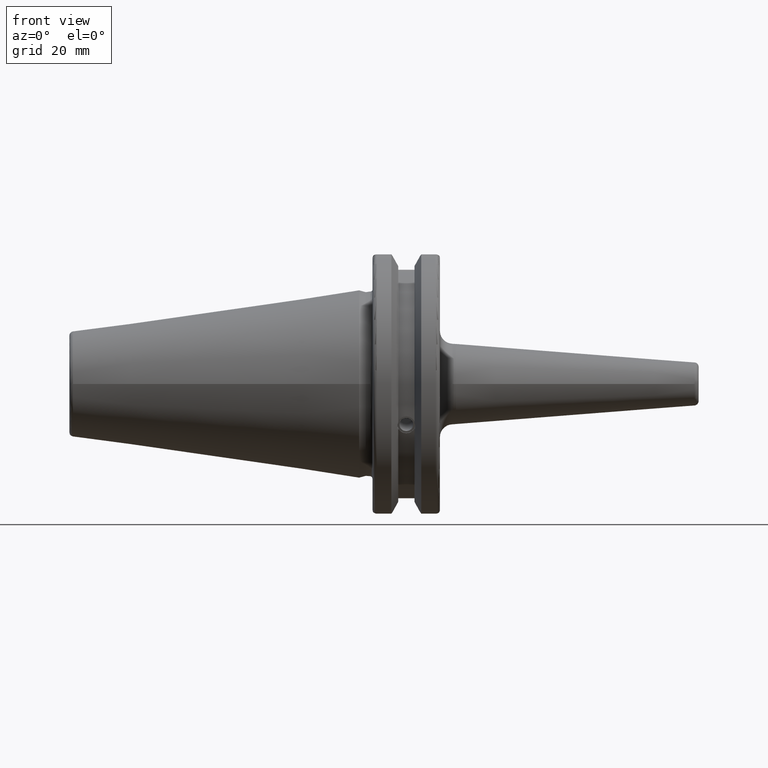
[diagram: clean part render]
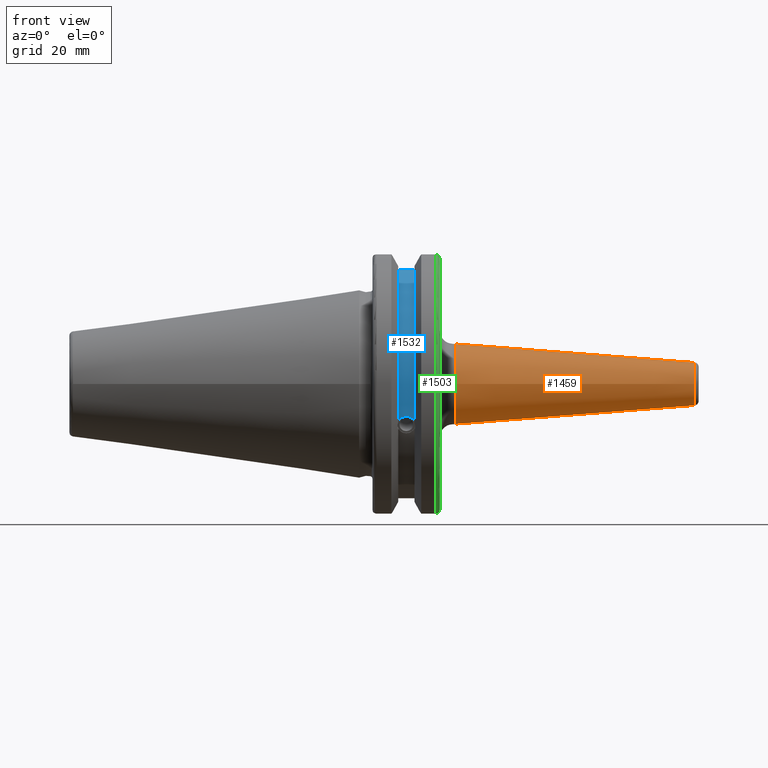
[diagram: same view with three faces highlighted in distinct colors, each labeled with its STEP entity id]
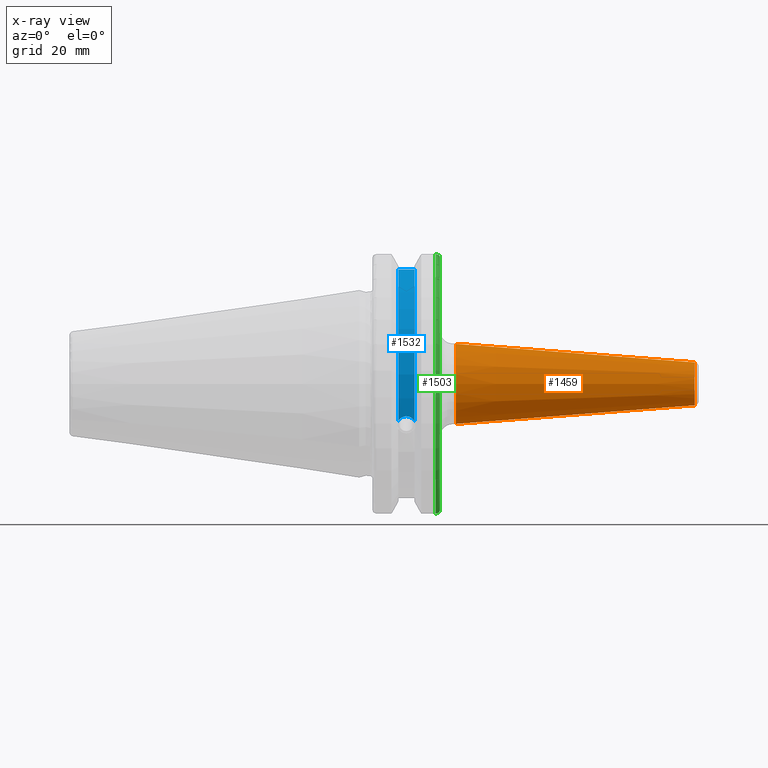
[diagram: x-ray of the same camera — body ghosted, the three highlighted faces saturated]
A machine part, front view with three faces highlighted in distinct colors.
The next image is the same camera in x-ray (body ghosted, the three faces saturated) — at least one of them is partly hidden behind the body in this view.
Their STEP definitions:

[orange] entity #1459 — the highlighted conical surface has half-angle 4.5 deg.
#156=LINE('',#2195,#250);
#250=VECTOR('',#1754,7.25);
#344=CONICAL_SURFACE('',#1571,7.25,0.0785398163397448);
#359=FACE_OUTER_BOUND('',#444,.T.);
#444=EDGE_LOOP('',(#997,#998,#999,#1000,#1001));
#544=CIRCLE('',#1569,5.07252684207492);
#545=CIRCLE('',#1570,5.07252684207492);
#546=CIRCLE('',#1572,9.5);
#614=VERTEX_POINT('',#2188);
#615=VERTEX_POINT('',#2190);
#616=VERTEX_POINT('',#2194);
#765=EDGE_CURVE('',#614,#615,#544,.T.);
#766=EDGE_CURVE('',#615,#614,#545,.T.);
#767=EDGE_CURVE('',#615,#616,#156,.T.);
#768=EDGE_CURVE('',#616,#616,#546,.T.);
#997=ORIENTED_EDGE('',*,*,#766,.F.);
#998=ORIENTED_EDGE('',*,*,#767,.T.);
#999=ORIENTED_EDGE('',*,*,#768,.T.);
#1000=ORIENTED_EDGE('',*,*,#767,.F.);
#1001=ORIENTED_EDGE('',*,*,#765,.F.);
#1459=ADVANCED_FACE('',(#359),#344,.T.);
#1569=AXIS2_PLACEMENT_3D('',#2191,#1748,#1749);
#1570=AXIS2_PLACEMENT_3D('',#2192,#1750,#1751);
#1571=AXIS2_PLACEMENT_3D('',#2193,#1752,#1753);
#1572=AXIS2_PLACEMENT_3D('',#2196,#1755,#1756);
#1748=DIRECTION('center_axis',(1.,0.,0.));
#1749=DIRECTION('ref_axis',(0.,-1.,3.06161699786838E-17));
#1750=DIRECTION('center_axis',(1.,0.,0.));
#1751=DIRECTION('ref_axis',(0.,-1.,3.06161699786838E-17));
#1752=DIRECTION('center_axis',(-1.,0.,0.));
#1753=DIRECTION('ref_axis',(0.,1.,0.));
#1754=DIRECTION('',(-0.996917333733128,-0.078459095727845,-9.60846804471011E-18));
#1755=DIRECTION('center_axis',(1.,0.,0.));
#1756=DIRECTION('ref_axis',(0.,0.,-1.));
#2188=CARTESIAN_POINT('',(79.0784590957279,-6.21205376073608E-16,5.07252684207492));
#2190=CARTESIAN_POINT('',(79.0784590957279,-5.07252684207492,-6.21205376073608E-16));
#2191=CARTESIAN_POINT('Origin',(79.0784590957279,0.,-7.7650672009201E-16));
#2192=CARTESIAN_POINT('Origin',(79.0784590957279,0.,-7.7650672009201E-16));
#2193=CARTESIAN_POINT('Origin',(51.4110393436069,0.,0.));
#2194=CARTESIAN_POINT('',(22.8220786872138,-9.5,-1.16341445918999E-15));
#2195=CARTESIAN_POINT('',(51.4110393436069,-7.25,-8.87868929381831E-16));
#2196=CARTESIAN_POINT('Origin',(22.8220786872138,0.,0.));

[blue] entity #1532 — the highlighted cylindrical surface (partial cylindrical patch) has radius 28.15 mm, axis along (1, 0, 0).
#54=B_SPLINE_CURVE_WITH_KNOTS('',3,(#2370,#2371,#2372,#2373,#2374,#2375,
#2376,#2377,#2378,#2379,#2380,#2381,#2382,#2383),.UNSPECIFIED.,.F.,.F.,
(4,2,2,2,2,2,4),(0.401639126382403,0.474814416953736,0.553950208498303,
0.63308600004287,0.712221791587437,0.791357583132004,0.864532873703336),
 .UNSPECIFIED.);
#105=CYLINDRICAL_SURFACE('',#1723,28.15);
#221=LINE('',#2783,#315);
#315=VECTOR('',#2039,10.);
#432=FACE_OUTER_BOUND('',#529,.T.);
#529=EDGE_LOOP('',(#1398,#1399,#1400,#1401));
#607=CIRCLE('',#1724,28.15);
#608=CIRCLE('',#1725,28.15);
#653=VERTEX_POINT('',#2367);
#654=VERTEX_POINT('',#2369);
#737=VERTEX_POINT('',#2780);
#738=VERTEX_POINT('',#2782);
#817=EDGE_CURVE('',#654,#653,#54,.T.);
#932=EDGE_CURVE('',#738,#737,#221,.T.);
#983=EDGE_CURVE('',#738,#653,#607,.T.);
#984=EDGE_CURVE('',#737,#654,#608,.T.);
#1398=ORIENTED_EDGE('',*,*,#817,.T.);
#1399=ORIENTED_EDGE('',*,*,#983,.F.);
#1400=ORIENTED_EDGE('',*,*,#932,.T.);
#1401=ORIENTED_EDGE('',*,*,#984,.T.);
#1532=ADVANCED_FACE('',(#432),#105,.T.);
#1723=AXIS2_PLACEMENT_3D('',#2931,#2147,#2148);
#1724=AXIS2_PLACEMENT_3D('',#2932,#2149,#2150);
#1725=AXIS2_PLACEMENT_3D('',#2933,#2151,#2152);
#2039=DIRECTION('',(-1.,0.,0.));
#2147=DIRECTION('center_axis',(1.,0.,0.));
#2148=DIRECTION('ref_axis',(0.,-0.887654187951484,0.46051063246378));
#2149=DIRECTION('center_axis',(1.,0.,0.));
#2150=DIRECTION('ref_axis',(0.,0.,-1.));
#2151=DIRECTION('center_axis',(1.,0.,0.));
#2152=DIRECTION('ref_axis',(0.,0.,-1.));
#2367=CARTESIAN_POINT('',(13.0491,-26.734714844398,-8.81348524641211));
#2369=CARTESIAN_POINT('',(9.2191,-26.734714844398,-8.81348524641212));
#2370=CARTESIAN_POINT('Ctrl Pts',(9.2191,-26.734714844398,-8.81348524641212));
#2371=CARTESIAN_POINT('Ctrl Pts',(9.32533057097183,-26.8086519721597,-8.58920529678291));
#2372=CARTESIAN_POINT('Ctrl Pts',(9.47682013770509,-26.8729987454904,-8.38416529997369));
#2373=CARTESIAN_POINT('Ctrl Pts',(9.83557062657411,-26.9778908791383,-8.04056861831091));
#2374=CARTESIAN_POINT('Ctrl Pts',(10.0716450112988,-27.0233016799732,-7.88512567185902));
#2375=CARTESIAN_POINT('Ctrl Pts',(10.5890125426388,-27.0826966800569,-7.6786444840004));
#2376=CARTESIAN_POINT('Ctrl Pts',(10.8703140281848,-27.0968804077294,-7.62768458768512));
#2377=CARTESIAN_POINT('Ctrl Pts',(11.3978859718152,-27.0968804077294,-7.62768458768512));
#2378=CARTESIAN_POINT('Ctrl Pts',(11.6791874573612,-27.0826966800569,-7.6786444840004));
#2379=CARTESIAN_POINT('Ctrl Pts',(12.1965549887012,-27.0233016799732,-7.88512567185902));
#2380=CARTESIAN_POINT('Ctrl Pts',(12.4326293734259,-26.9778908791383,-8.04056861831091));
#2381=CARTESIAN_POINT('Ctrl Pts',(12.7913798622949,-26.8729987454904,-8.38416529997369));
#2382=CARTESIAN_POINT('Ctrl Pts',(12.9428694290282,-26.8086519721597,-8.5892052967829));
#2383=CARTESIAN_POINT('Ctrl Pts',(13.0491,-26.734714844398,-8.81348524641211));
#2780=CARTESIAN_POINT('',(9.2191,-8.19,26.932255754021));
#2782=CARTESIAN_POINT('',(13.0491,-8.19,26.932255754021));
#2783=CARTESIAN_POINT('',(11.1341,-8.19,26.932255754021));
#2931=CARTESIAN_POINT('Origin',(11.1341,0.,0.));
#2932=CARTESIAN_POINT('Origin',(13.0491,0.,0.));
#2933=CARTESIAN_POINT('Origin',(9.2191,0.,0.));

[green] entity #1503 — the highlighted toroidal blend (fillet) surface has major radius 30.75 mm and minor (blend) radius 1 mm.
#68=B_SPLINE_CURVE_WITH_KNOTS('',3,(#2733,#2734,#2735,#2736,#2737,#2738),
 .UNSPECIFIED.,.F.,.F.,(4,2,4),(0.097738363091569,0.112311108149119,0.150804350305566),
 .UNSPECIFIED.);
#69=B_SPLINE_CURVE_WITH_KNOTS('',3,(#2740,#2741,#2742,#2743,#2744,#2745),
 .UNSPECIFIED.,.F.,.F.,(4,2,4),(0.452741154494497,0.491581665024872,0.505824174364156),
 .UNSPECIFIED.);
#70=B_SPLINE_CURVE_WITH_KNOTS('',3,(#2747,#2748,#2749,#2750,#2751,#2752,
#2753,#2754),.UNSPECIFIED.,.F.,.F.,(4,2,2,4),(-0.104180282751877,-0.0729784742461446,
-0.0343524753874984,0.),.UNSPECIFIED.);
#71=B_SPLINE_CURVE_WITH_KNOTS('',3,(#2757,#2758,#2759,#2760,#2761,#2762,
#2763,#2764),.UNSPECIFIED.,.F.,.F.,(4,2,2,4),(0.,0.0343524753874978,0.0729784742461449,
0.104180282751877),.UNSPECIFIED.);
#403=FACE_OUTER_BOUND('',#499,.T.);
#499=EDGE_LOOP('',(#1253,#1254,#1255,#1256,#1257,#1258));
#553=CIRCLE('',#1583,30.75);
#592=CIRCLE('',#1680,31.75);
#627=VERTEX_POINT('',#2222);
#628=VERTEX_POINT('',#2224);
#730=VERTEX_POINT('',#2732);
#731=VERTEX_POINT('',#2739);
#732=VERTEX_POINT('',#2746);
#733=VERTEX_POINT('',#2755);
#781=EDGE_CURVE('',#628,#627,#553,.T.);
#922=EDGE_CURVE('',#730,#628,#68,.T.);
#923=EDGE_CURVE('',#627,#731,#69,.T.);
#924=EDGE_CURVE('',#731,#732,#70,.T.);
#925=EDGE_CURVE('',#732,#733,#592,.T.);
#926=EDGE_CURVE('',#733,#730,#71,.T.);
#1253=ORIENTED_EDGE('',*,*,#922,.T.);
#1254=ORIENTED_EDGE('',*,*,#781,.T.);
#1255=ORIENTED_EDGE('',*,*,#923,.T.);
#1256=ORIENTED_EDGE('',*,*,#924,.T.);
#1257=ORIENTED_EDGE('',*,*,#925,.T.);
#1258=ORIENTED_EDGE('',*,*,#926,.T.);
#1454=TOROIDAL_SURFACE('',#1679,30.75,1.);
#1503=ADVANCED_FACE('',(#403),#1454,.T.);
#1583=AXIS2_PLACEMENT_3D('',#2225,#1783,#1784);
#1679=AXIS2_PLACEMENT_3D('',#2731,#2030,#2031);
#1680=AXIS2_PLACEMENT_3D('',#2756,#2032,#2033);
#1783=DIRECTION('center_axis',(-1.,0.,0.));
#1784=DIRECTION('ref_axis',(0.,-1.,1.60812264967664E-16));
#2030=DIRECTION('center_axis',(1.,0.,0.));
#2031=DIRECTION('ref_axis',(0.,0.,-1.));
#2032=DIRECTION('center_axis',(1.,0.,0.));
#2033=DIRECTION('ref_axis',(0.,-1.,1.60812264967664E-16));
#2222=CARTESIAN_POINT('',(19.05,-8.19,29.6392712461019));
#2224=CARTESIAN_POINT('',(19.05,-8.19,-29.6392712461019));
#2225=CARTESIAN_POINT('Origin',(19.05,0.,0.));
#2731=CARTESIAN_POINT('Origin',(18.05,0.,0.));
#2732=CARTESIAN_POINT('',(18.9058722749097,-8.19,-30.1755016258903));
#2733=CARTESIAN_POINT('Ctrl Pts',(18.9058722749097,-8.19,-30.1755016258903));
#2734=CARTESIAN_POINT('Ctrl Pts',(18.9324477233044,-8.19,-30.1299319366157));
#2735=CARTESIAN_POINT('Ctrl Pts',(18.9550700364447,-8.19,-30.0829389905409));
#2736=CARTESIAN_POINT('Ctrl Pts',(19.0210043632013,-8.19,-29.9188002007263));
#2737=CARTESIAN_POINT('Ctrl Pts',(19.05,-8.19,-29.76758205329));
#2738=CARTESIAN_POINT('Ctrl Pts',(19.05,-8.19,-29.6392712461019));
#2739=CARTESIAN_POINT('',(18.9058722749097,-8.19,30.1755016258903));
#2740=CARTESIAN_POINT('Ctrl Pts',(19.05,-8.19,29.6392712461019));
#2741=CARTESIAN_POINT('Ctrl Pts',(19.05,-8.19,29.7687396145364));
#2742=CARTESIAN_POINT('Ctrl Pts',(19.020485567083,-8.19,29.9212724384851));
#2743=CARTESIAN_POINT('Ctrl Pts',(18.9539643471756,-8.19,30.0852355256475));
#2744=CARTESIAN_POINT('Ctrl Pts',(18.9318163728133,-8.19,30.131014531546));
#2745=CARTESIAN_POINT('Ctrl Pts',(18.9058722749097,-8.19,30.1755016258903));
#2746=CARTESIAN_POINT('',(18.05,-8.67204822802685,30.5427254764662));
#2747=CARTESIAN_POINT('Ctrl Pts',(18.9058722749097,-8.19,30.1755016258903));
#2748=CARTESIAN_POINT('Ctrl Pts',(18.8574463042989,-8.2703682833078,30.2367261024977));
#2749=CARTESIAN_POINT('Ctrl Pts',(18.7926702662319,-8.34909446036477,30.2966996242308));
#2750=CARTESIAN_POINT('Ctrl Pts',(18.6396724190507,-8.48862804755884,30.4029961692546));
#2751=CARTESIAN_POINT('Ctrl Pts',(18.5184414294771,-8.56482138642532,30.4610401774263));
#2752=CARTESIAN_POINT('Ctrl Pts',(18.2983170433775,-8.6471881193939,30.5237870709558));
#2753=CARTESIAN_POINT('Ctrl Pts',(18.1645082512917,-8.67204822802685,30.5427254764662));
#2754=CARTESIAN_POINT('Ctrl Pts',(18.05,-8.67204822802685,30.5427254764662));
#2755=CARTESIAN_POINT('',(18.05,-8.67204822802686,-30.5427254764662));
#2756=CARTESIAN_POINT('Origin',(18.05,0.,0.));
#2757=CARTESIAN_POINT('Ctrl Pts',(18.05,-8.67204822802685,-30.5427254764662));
#2758=CARTESIAN_POINT('Ctrl Pts',(18.1645082512917,-8.67204822802685,-30.5427254764662));
#2759=CARTESIAN_POINT('Ctrl Pts',(18.2983170433775,-8.6471881193939,-30.5237870709558));
#2760=CARTESIAN_POINT('Ctrl Pts',(18.5184414294771,-8.56482138642532,-30.4610401774263));
#2761=CARTESIAN_POINT('Ctrl Pts',(18.6396724190507,-8.48862804755883,-30.4029961692546));
#2762=CARTESIAN_POINT('Ctrl Pts',(18.7926702662319,-8.34909446036477,-30.2966996242308));
#2763=CARTESIAN_POINT('Ctrl Pts',(18.8574463042989,-8.2703682833078,-30.2367261024977));
#2764=CARTESIAN_POINT('Ctrl Pts',(18.9058722749097,-8.19,-30.1755016258903));